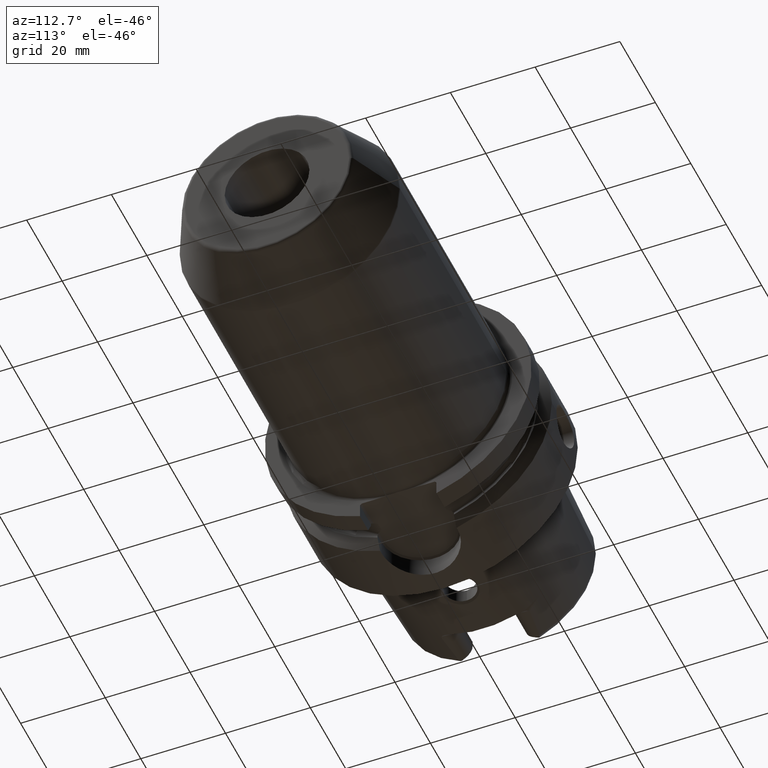
[diagram: clean part render]
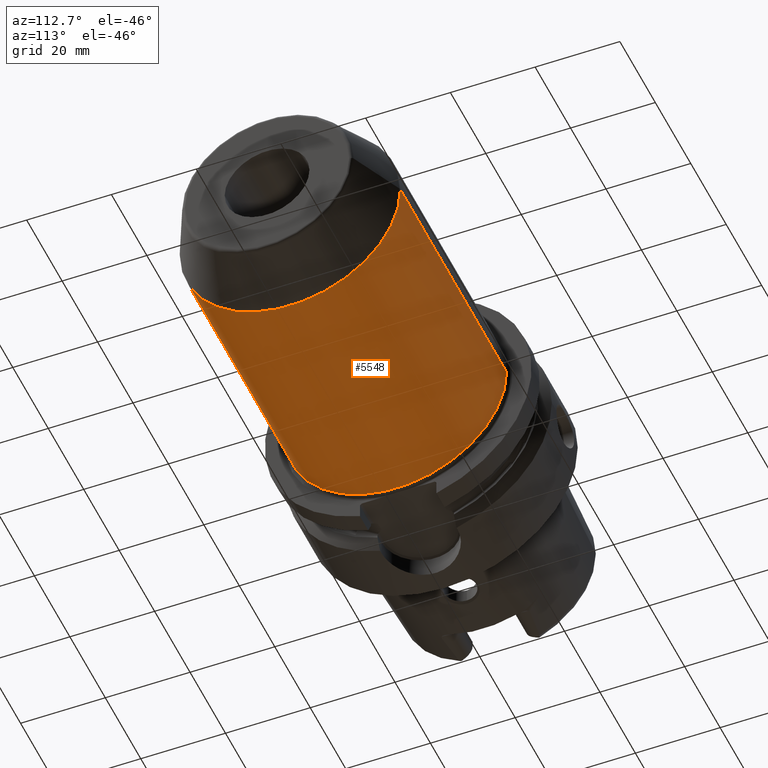
[diagram: same view with one face highlighted and labeled with its STEP entity id]
A machine part, auxiliary view. The second image highlights one B-rep face of the part: STEP entity #5548.
In plain terms, the highlighted cylindrical surface (partial cylindrical patch) has radius 26 mm, axis along (1, 0, 0).
Its self-contained STEP definition (entity closure, byte-faithful):
#1546=CARTESIAN_POINT('',(2.7E1,0.E0,0.E0));
#1547=DIRECTION('',(1.E0,0.E0,0.E0));
#1548=DIRECTION('',(0.E0,-1.E0,0.E0));
#1549=AXIS2_PLACEMENT_3D('',#1546,#1547,#1548);
#2064=CARTESIAN_POINT('',(6.799573318991E1,-2.6E1,0.E0));
#2091=CARTESIAN_POINT('',(8.200426681009E1,-2.6E1,0.E0));
#2093=DIRECTION('',(-1.E0,0.E0,-5.340813861931E-14));
#2094=VECTOR('',#2093,4.099573318991E1);
#2095=CARTESIAN_POINT('',(6.799573318991E1,-2.6E1,0.E0));
#2096=LINE('',#2095,#2094);
#2097=CARTESIAN_POINT('',(8.200426681009E1,-2.6E1,0.E0));
#2098=CARTESIAN_POINT('',(8.200426681009E1,-2.6E1,-2.878780006873E-1));
#2099=CARTESIAN_POINT('',(8.196873327633E1,-2.599049399242E1,
-8.605233205335E-1));
#2100=CARTESIAN_POINT('',(8.180731749614E1,-2.594791841796E1,
-1.716073153114E0));
#2101=CARTESIAN_POINT('',(8.153961115268E1,-2.587930499636E1,
-2.546791980255E0));
#2102=CARTESIAN_POINT('',(8.116567442627E1,-2.578770201308E1,
-3.346530813112E0));
#2103=CARTESIAN_POINT('',(8.069115278516E1,-2.567862894986E1,
-4.097190838748E0));
#2104=CARTESIAN_POINT('',(8.011881461495E1,-2.555796879067E1,
-4.789364928127E0));
#2105=CARTESIAN_POINT('',(7.946421461903E1,-2.543477096006E1,
-5.402401162106E0));
#2106=CARTESIAN_POINT('',(7.873392462557E1,-2.531637216817E1,
-5.929695275198E0));
#2107=CARTESIAN_POINT('',(7.795164568457E1,-2.521214041214E1,
-6.355890792861E0));
#2108=CARTESIAN_POINT('',(7.712340382572E1,-2.512769987295E1,
-6.680134660411E0));
#2109=CARTESIAN_POINT('',(7.627407384598E1,-2.506909657155E1,
-6.895582468499E0));
#2110=CARTESIAN_POINT('',(7.540498598302E1,-2.503878773142E1,
-7.004249601117E0));
#2111=CARTESIAN_POINT('',(7.453896599015E1,-2.503860878115E1,
-7.004885928570E0));
#2112=CARTESIAN_POINT('',(7.3674113E1,-2.506844697117E1,-6.897926362442E0));
#2113=CARTESIAN_POINT('',(7.283267366813E1,-2.512629226191E1,
-6.685376521725E0));
#2114=CARTESIAN_POINT('',(7.201457054309E1,-2.520967491598E1,
-6.365556925359E0));
#2115=CARTESIAN_POINT('',(7.124318697497E1,-2.531270649055E1,
-5.945150492727E0));
#2116=CARTESIAN_POINT('',(7.052282683478E1,-2.543008867053E1,
-5.424177151469E0));
#2117=CARTESIAN_POINT('',(6.987584958859E1,-2.555280177859E1,
-4.816644061968E0));
#2118=CARTESIAN_POINT('',(6.930831926986E1,-2.567370700909E1,
-4.127815584662E0));
#2119=CARTESIAN_POINT('',(6.883590727317E1,-2.578371848630E1,
-3.377229512905E0));
#2120=CARTESIAN_POINT('',(6.846216785112E1,-2.587668186259E1,
-2.573893946219E0));
#2121=CARTESIAN_POINT('',(6.819371446963E1,-2.594667151626E1,
-1.736197424953E0));
#2122=CARTESIAN_POINT('',(6.803151934396E1,-2.599024332271E1,
-8.713743291983E-1));
#2123=CARTESIAN_POINT('',(6.799573318991E1,-2.6E1,-2.916727238885E-1));
#2124=CARTESIAN_POINT('',(6.799573318991E1,-2.6E1,0.E0));
#2126=DIRECTION('',(-1.E0,0.E0,-3.134416106327E-14));
#2127=VECTOR('',#2126,4.906997004208E0);
#2128=CARTESIAN_POINT('',(8.691126381430E1,-2.6E1,1.510516996388E-13));
#2129=LINE('',#2128,#2127);
#2130=CARTESIAN_POINT('',(8.691126381430E1,0.E0,0.E0));
#2131=DIRECTION('',(-1.E0,0.E0,0.E0));
#2132=DIRECTION('',(0.E0,1.E0,0.E0));
#2133=AXIS2_PLACEMENT_3D('',#2130,#2131,#2132);
#2135=DIRECTION('',(-1.E0,0.E0,2.672882673621E-14));
#2136=VECTOR('',#2135,5.991126381430E1);
#2137=CARTESIAN_POINT('',(8.691126381430E1,2.6E1,-1.518511895052E-13));
#2138=LINE('',#2137,#2136);
#3253=CARTESIAN_POINT('',(8.691126381430E1,2.6E1,0.E0));
#3254=CARTESIAN_POINT('',(8.691126381430E1,-2.6E1,0.E0));
#3255=VERTEX_POINT('',#3253);
#3256=VERTEX_POINT('',#3254);
#3277=VERTEX_POINT('',#2064);
#3278=VERTEX_POINT('',#2091);
#3288=CARTESIAN_POINT('',(2.7E1,-2.6E1,-1.731947918415E-14));
#3290=VERTEX_POINT('',#3288);
#3291=CARTESIAN_POINT('',(2.7E1,2.6E1,0.E0));
#3292=VERTEX_POINT('',#3291);
#5533=CARTESIAN_POINT('',(2.23E1,0.E0,0.E0));
#5534=DIRECTION('',(1.E0,0.E0,0.E0));
#5535=DIRECTION('',(0.E0,-1.E0,0.E0));
#5536=AXIS2_PLACEMENT_3D('',#5533,#5534,#5535);
#5537=CYLINDRICAL_SURFACE('',#5536,2.6E1);
#5538=ORIENTED_EDGE('',*,*,#4889,.F.);
#5539=ORIENTED_EDGE('',*,*,#5528,.F.);
#5541=ORIENTED_EDGE('',*,*,#5540,.F.);
#5542=ORIENTED_EDGE('',*,*,#5524,.F.);
#5544=ORIENTED_EDGE('',*,*,#5543,.F.);
#5545=ORIENTED_EDGE('',*,*,#5520,.T.);
#5546=EDGE_LOOP('',(#5538,#5539,#5541,#5542,#5544,#5545));
#5547=FACE_OUTER_BOUND('',#5546,.F.);
#5548=ADVANCED_FACE('',(#5547),#5537,.T.);
#1550=CIRCLE('',#1549,2.6E1);
#2125=B_SPLINE_CURVE_WITH_KNOTS('',3,(#2097,#2098,#2099,#2100,#2101,#2102,#2103,
#2104,#2105,#2106,#2107,#2108,#2109,#2110,#2111,#2112,#2113,#2114,#2115,#2116,
#2117,#2118,#2119,#2120,#2121,#2122,#2123,#2124),.UNSPECIFIED.,.F.,.F.,(4,1,1,1,
1,1,1,1,1,1,1,1,1,1,1,1,1,1,1,1,1,1,1,1,1,4),(0.E0,4.E-2,8.E-2,1.2E-1,1.6E-1,
2.E-1,2.4E-1,2.8E-1,3.2E-1,3.6E-1,4.E-1,4.4E-1,4.8E-1,5.2E-1,5.6E-1,6.E-1,
6.4E-1,6.8E-1,7.2E-1,7.6E-1,8.E-1,8.4E-1,8.8E-1,9.2E-1,9.6E-1,1.E0),
.UNSPECIFIED.);
#2134=CIRCLE('',#2133,2.6E1);
#4889=EDGE_CURVE('',#3290,#3292,#1550,.T.);
#5520=EDGE_CURVE('',#3255,#3292,#2138,.T.);
#5524=EDGE_CURVE('',#3256,#3278,#2129,.T.);
#5528=EDGE_CURVE('',#3277,#3290,#2096,.T.);
#5540=EDGE_CURVE('',#3278,#3277,#2125,.T.);
#5543=EDGE_CURVE('',#3255,#3256,#2134,.T.);